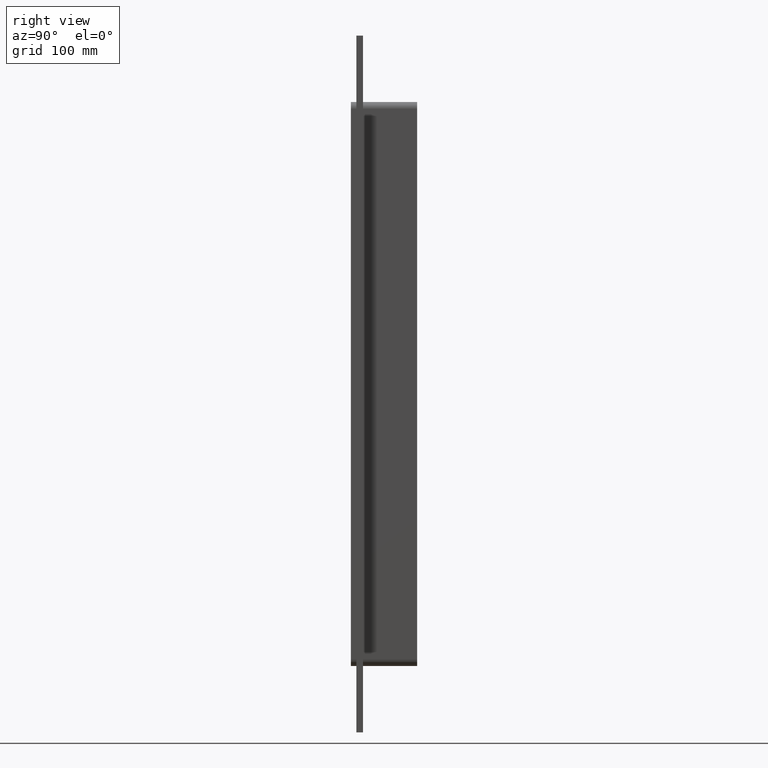
[diagram: clean part render]
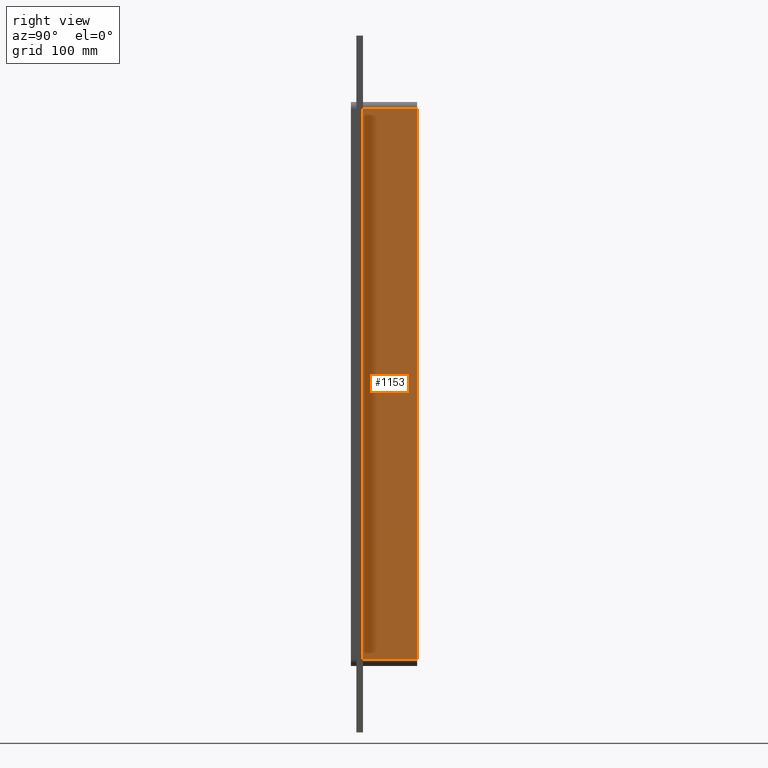
[diagram: same view with one face highlighted and labeled with its STEP entity id]
A machine part, right view. The second image highlights one B-rep face of the part: STEP entity #1153.
In plain terms, the highlighted planar face has unit normal (1, 0, 0).
Its self-contained STEP definition (entity closure, byte-faithful):
#406=CARTESIAN_POINT('',(36.25,6.000000000000001,249.24999999999997));
#407=VERTEX_POINT('',#406);
#457=CARTESIAN_POINT('',(36.25,6.000000000000001,-249.24999999999997));
#458=VERTEX_POINT('',#457);
#466=CARTESIAN_POINT('',(36.25,6.000000000000001,249.24999999999997));
#467=DIRECTION('',(0.0,0.0,-1.0));
#468=VECTOR('',#467,498.49999999999989);
#469=LINE('',#466,#468);
#470=EDGE_CURVE('',#407,#458,#469,.T.);
#1069=CARTESIAN_POINT('',(36.25,55.0,249.24999999999997));
#1070=VERTEX_POINT('',#1069);
#1071=CARTESIAN_POINT('',(36.25,55.0,249.24999999999997));
#1072=DIRECTION('',(0.0,-1.0,0.0));
#1073=VECTOR('',#1072,49.0);
#1074=LINE('',#1071,#1073);
#1075=EDGE_CURVE('',#1070,#407,#1074,.T.);
#1119=CARTESIAN_POINT('',(36.25,55.0,-249.24999999999997));
#1120=VERTEX_POINT('',#1119);
#1128=CARTESIAN_POINT('',(36.25,6.000000000000001,-249.24999999999997));
#1129=DIRECTION('',(0.0,1.0,0.0));
#1130=VECTOR('',#1129,49.0);
#1131=LINE('',#1128,#1130);
#1132=EDGE_CURVE('',#458,#1120,#1131,.T.);
#1137=CARTESIAN_POINT('',(36.25,0.0,249.24999999999997));
#1138=DIRECTION('',(1.0,0.0,0.0));
#1139=DIRECTION('',(0.0,0.0,-1.0));
#1140=AXIS2_PLACEMENT_3D('',#1137,#1138,#1139);
#1141=PLANE('',#1140);
#1142=ORIENTED_EDGE('',*,*,#470,.T.);
#1143=ORIENTED_EDGE('',*,*,#1132,.T.);
#1144=CARTESIAN_POINT('',(36.25,55.0,249.24999999999997));
#1145=DIRECTION('',(0.0,0.0,-1.0));
#1146=VECTOR('',#1145,498.49999999999994);
#1147=LINE('',#1144,#1146);
#1148=EDGE_CURVE('',#1070,#1120,#1147,.T.);
#1149=ORIENTED_EDGE('',*,*,#1148,.F.);
#1150=ORIENTED_EDGE('',*,*,#1075,.T.);
#1151=EDGE_LOOP('',(#1142,#1143,#1149,#1150));
#1152=FACE_OUTER_BOUND('',#1151,.T.);
#1153=ADVANCED_FACE('',(#1152),#1141,.T.);